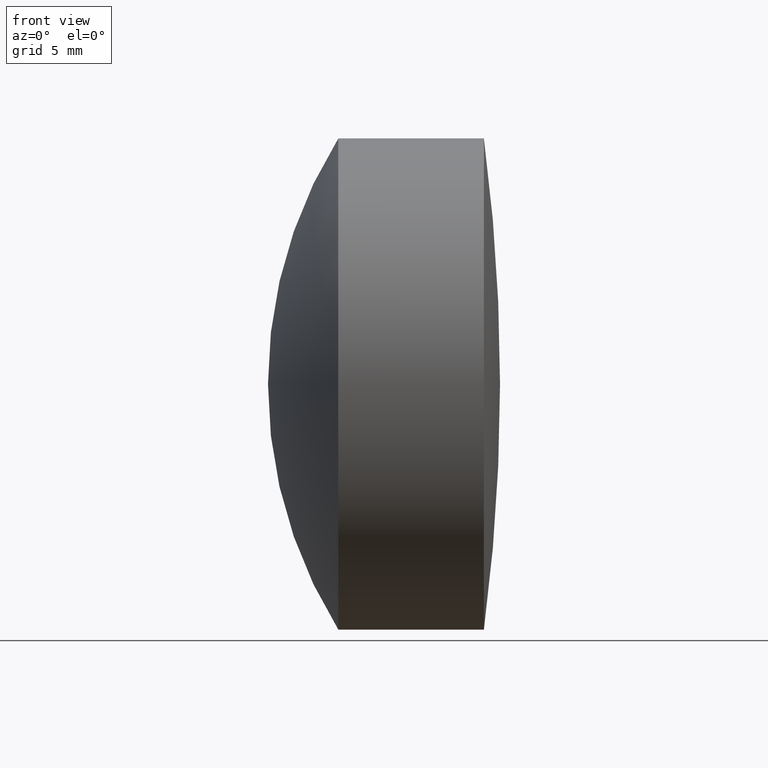
[diagram: clean part render]
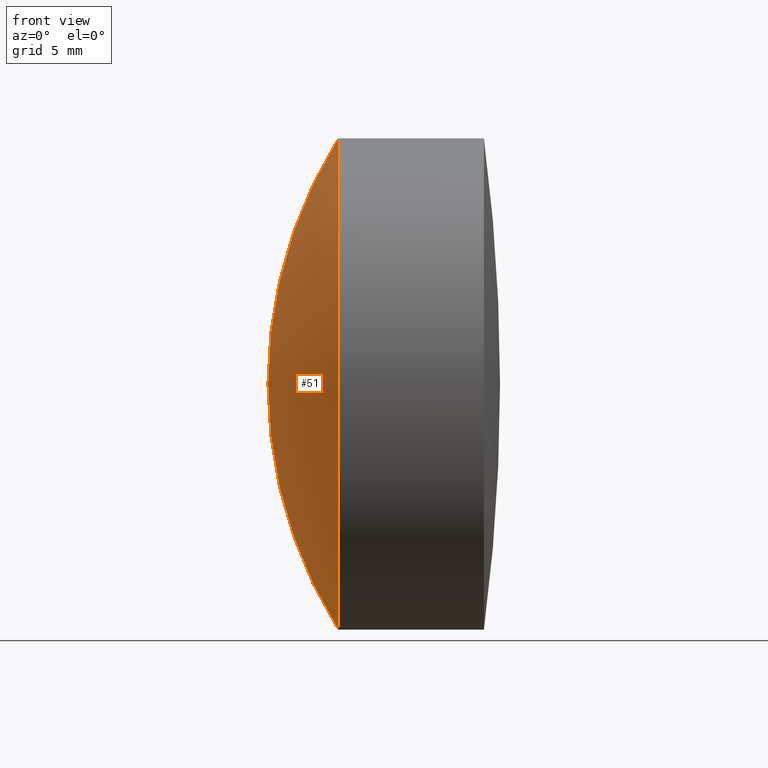
[diagram: same view with one face highlighted and labeled with its STEP entity id]
A machine part, front view. The second image highlights one B-rep face of the part: STEP entity #51.
In plain terms, the highlighted spherical surface has radius 23.99 mm.
Its self-contained STEP definition (entity closure, byte-faithful):
#11 = AXIS2_PLACEMENT_3D ( 'NONE', #48, #94, #182 ) ;
#22 = CARTESIAN_POINT ( 'NONE',  ( 272.5989865545651600, 0.0000000000000000000, 5.503456575654534800E-015 ) ) ;
#25 = AXIS2_PLACEMENT_3D ( 'NONE', #315, #132, #236 ) ;
#47 = CARTESIAN_POINT ( 'NONE',  ( 296.5889865545651700, 0.0000000000000000000, 6.972420411231785500E-015 ) ) ;
#48 = CARTESIAN_POINT ( 'NONE',  ( 296.5889865545651700, 0.0000000000000000000, 6.972420411231785500E-015 ) ) ;
#51 = ADVANCED_FACE ( 'NONE', ( #332 ), #293, .T. ) ;
#72 = CARTESIAN_POINT ( 'NONE',  ( 276.2363429916271700, 0.0000000000000000000, -12.69999999999999900 ) ) ;
#94 = DIRECTION ( 'NONE',  ( -0.0000000000000000000, -1.000000000000000000, -0.0000000000000000000 ) ) ;
#132 = DIRECTION ( 'NONE',  ( 0.0000000000000000000, 1.000000000000000000, -0.0000000000000000000 ) ) ;
#141 = DIRECTION ( 'NONE',  ( 0.0000000000000000000, -1.000000000000000000, -1.224646799147353200E-016 ) ) ;
#145 = EDGE_CURVE ( 'NONE', #278, #267, #176, .T. ) ;
#150 = EDGE_CURVE ( 'NONE', #267, #156, #244, .T. ) ;
#156 = VERTEX_POINT ( 'NONE', #22 ) ;
#160 = DIRECTION ( 'NONE',  ( -1.000000000000000000, -0.0000000000000000000, -0.0000000000000000000 ) ) ;
#176 = CIRCLE ( 'NONE', #323, 12.70000000000000600 ) ;
#182 = DIRECTION ( 'NONE',  ( 0.0000000000000000000, 0.0000000000000000000, -1.000000000000000000 ) ) ;
#217 = ORIENTED_EDGE ( 'NONE', *, *, #243, .F. ) ;
#227 = CIRCLE ( 'NONE', #25, 23.99000000000001600 ) ;
#230 = DIRECTION ( 'NONE',  ( 0.0000000000000000000, 0.0000000000000000000, 1.000000000000000000 ) ) ;
#234 = ORIENTED_EDGE ( 'NONE', *, *, #150, .T. ) ;
#236 = DIRECTION ( 'NONE',  ( 0.0000000000000000000, 0.0000000000000000000, 1.000000000000000000 ) ) ;
#243 = EDGE_CURVE ( 'NONE', #278, #156, #227, .T. ) ;
#244 = CIRCLE ( 'NONE', #265, 23.99000000000001600 ) ;
#265 = AXIS2_PLACEMENT_3D ( 'NONE', #47, #141, #326 ) ;
#267 = VERTEX_POINT ( 'NONE', #275 ) ;
#275 = CARTESIAN_POINT ( 'NONE',  ( 276.2363429916271700, -1.555301434917138400E-015, 12.70000000000000600 ) ) ;
#278 = VERTEX_POINT ( 'NONE', #72 ) ;
#293 = SPHERICAL_SURFACE ( 'NONE', #11, 23.99000000000001600 ) ;
#300 = EDGE_LOOP ( 'NONE', ( #330, #234, #217 ) ) ;
#315 = CARTESIAN_POINT ( 'NONE',  ( 296.5889865545651700, 0.0000000000000000000, 6.972420411231785500E-015 ) ) ;
#323 = AXIS2_PLACEMENT_3D ( 'NONE', #342, #160, #230 ) ;
#326 = DIRECTION ( 'NONE',  ( 0.0000000000000000000, 1.224646799147353200E-016, -1.000000000000000000 ) ) ;
#330 = ORIENTED_EDGE ( 'NONE', *, *, #145, .T. ) ;
#332 = FACE_OUTER_BOUND ( 'NONE', #300, .T. ) ;
#342 = CARTESIAN_POINT ( 'NONE',  ( 276.2363429916271700, 0.0000000000000000000, 0.0000000000000000000 ) ) ;